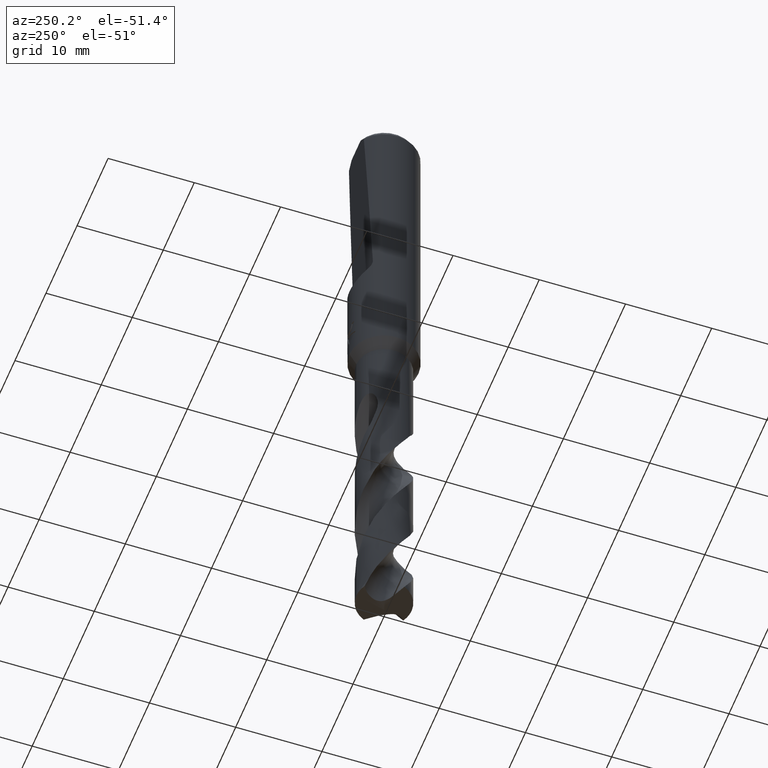
[diagram: clean part render]
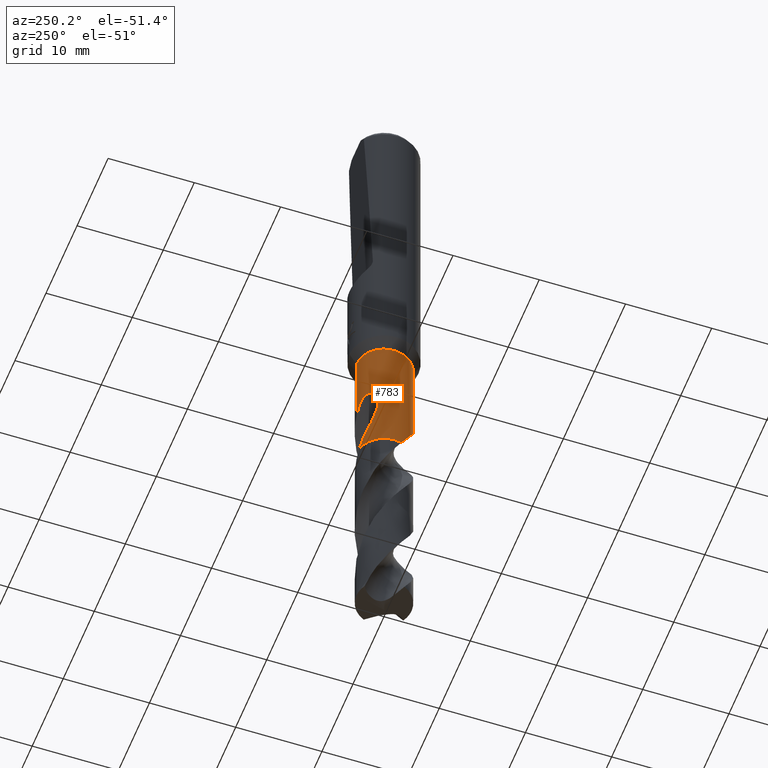
[diagram: same view with one face highlighted and labeled with its STEP entity id]
A machine part, auxiliary view. The second image highlights one B-rep face of the part: STEP entity #783.
In plain terms, the highlighted cylindrical surface (edge-blend (fillet) strip) has radius 3.2 mm, axis along (-0, -0, 1).
Its self-contained STEP definition (entity closure, byte-faithful):
#307=EDGE_CURVE('',#343,#479,#870,.T.);
#309=VERTEX_POINT('',#872);
#327=EDGE_CURVE('',#455,#517,#890,.T.);
#343=VERTEX_POINT('',#907);
#393=EDGE_CURVE('',#309,#455,#966,.T.);
#429=VERTEX_POINT('',#1004);
#439=VERTEX_POINT('',#1015);
#455=VERTEX_POINT('',#1033);
#479=VERTEX_POINT('',#1058);
#517=VERTEX_POINT('',#1099);
#549=EDGE_CURVE('',#439,#429,#1136,.T.);
#593=EDGE_CURVE('',#479,#309,#1183,.T.);
#595=EDGE_CURVE('',#793,#799,#1185,.T.);
#599=EDGE_CURVE('',#793,#343,#1189,.T.);
#645=EDGE_CURVE('',#517,#439,#1239,.T.);
#735=EDGE_CURVE('',#429,#799,#1337,.T.);
#783=ADVANCED_FACE('',(#1390),#1391,.T.);
#793=VERTEX_POINT('',#1402);
#799=VERTEX_POINT('',#1410);
#870=B_SPLINE_CURVE_WITH_KNOTS('',3,(#1477,#1478,#1479,#1480,#1481,#1482,#1483,#1484,#1485,#1486,#1487,#1488,#1489,#1490,#1491,#1492,#1493,#1494,#1495,#1496,#1497,#1498,#1499,#1500,#1501,#1502,#1503,#1504,#1505,#1506),.UNSPECIFIED.,.F.,.F.,(4,2,2,2,2,2,2,2,2,2,2,2,2,2,4),(0.0,1.56782231376001,2.4238893840547,3.1992708022558,4.10007757764716,5.18215244997313,6.12000526879655,6.54500791561114,6.85563302697629,7.14957522535255,7.52245842678827,8.06800167477267,8.84355554516768,9.35107348328173,9.88444037120564),.UNSPECIFIED.);
#872=CARTESIAN_POINT('',(3.91874033223161E-016,-3.2,-37.3856406460551));
#890=LINE('',#1595,#1596);
#907=CARTESIAN_POINT('',(-2.03908941204373,-2.46619430898929,-49.8434));
#966=CIRCLE('',#3240,3.2);
#1004=CARTESIAN_POINT('',(-2.2242474956683,2.30059189731975,-49.8434));
#1015=CARTESIAN_POINT('',(-2.60365492250826,1.86037121147864,-48.0911432665525));
#1033=CARTESIAN_POINT('',(0.0,3.2,-37.3856406460551));
#1058=CARTESIAN_POINT('',(9.49214578466195E-013,-3.2,-46.4418682923582));
#1099=CARTESIAN_POINT('',(-9.47882310836645E-013,3.2,-46.4418682923582));
#1136=B_SPLINE_CURVE_WITH_KNOTS('',3,(#4449,#4450,#4451,#4452),.UNSPECIFIED.,.F.,.F.,(4,4),(0.0,1.83910368550612),.UNSPECIFIED.);
#1183=LINE('',#4595,#4596);
#1185=CIRCLE('',#4599,3.2);
#1189=B_SPLINE_CURVE_WITH_KNOTS('',3,(#4605,#4606,#4607,#4608,#4609,#4610,#4611,#4612,#4613,#4614),.UNSPECIFIED.,.F.,.F.,(4,2,2,2,4),(0.0,1.85208206566709,2.44590199246698,2.92950370914155,3.35211332384867),.UNSPECIFIED.);
#1239=B_SPLINE_CURVE_WITH_KNOTS('',3,(#5109,#5110,#5111,#5112,#5113,#5114,#5115,#5116,#5117,#5118,#5119,#5120,#5121,#5122,#5123,#5124,#5125,#5126,#5127,#5128,#5129,#5130,#5131,#5132,#5133,#5134,#5135,#5136,#5137,#5138),.UNSPECIFIED.,.F.,.F.,(4,2,2,2,2,2,2,2,2,2,2,2,2,2,4),(0.0,1.56782231376,2.42388938405478,3.19927080225604,4.10007757764711,5.18215244997258,6.12000526879567,6.5450079156102,6.85563302697524,7.14957522535136,7.52245842678693,8.06800167476919,8.84355554515743,9.35107348326668,9.88444037118558),.UNSPECIFIED.);
#1337=B_SPLINE_CURVE_WITH_KNOTS('',3,(#5768,#5769,#5770,#5771,#5772,#5773,#5774,#5775),.UNSPECIFIED.,.F.,.F.,(4,2,2,4),(0.0,0.784464466969094,1.49816144601348,3.29542581541226),.UNSPECIFIED.);
#1390=FACE_OUTER_BOUND('',#6911,.T.);
#1391=CYLINDRICAL_SURFACE('',#6912,3.2);
#1402=CARTESIAN_POINT('',(-3.07150665534225,-0.897689738266087,-53.0));
#1410=CARTESIAN_POINT('',(-0.635884829735735,3.13618406400389,-53.0));
#1477=CARTESIAN_POINT('',(-2.03908941204373,-2.46619430898929,-49.8434));
#1478=CARTESIAN_POINT('',(-1.82800567805744,-2.64072176023561,-49.3983130869401));
#1479=CARTESIAN_POINT('',(-1.58530715369426,-2.79586454757279,-48.983348576287));
#1480=CARTESIAN_POINT('',(-1.16211325690765,-2.98602454372155,-48.2901219086283));
#1481=CARTESIAN_POINT('',(-1.00982828565803,-3.04072636046145,-48.0462215655825));
#1482=CARTESIAN_POINT('',(-0.715023821655965,-3.122480120881,-47.5740936955324));
#1483=CARTESIAN_POINT('',(-0.573820631320053,-3.1513635316966,-47.3480668416116));
#1484=CARTESIAN_POINT('',(-0.268175200748478,-3.19304942932217,-46.860918931824));
#1485=CARTESIAN_POINT('',(-0.101179909619363,-3.2028361312528,-46.5959847266246));
#1486=CARTESIAN_POINT('',(0.269673865903414,-3.1950353626123,-46.0292030328951));
#1487=CARTESIAN_POINT('',(0.489552675420427,-3.17090772647206,-45.7066980519819));
#1488=CARTESIAN_POINT('',(0.913560527382492,-3.07346880415289,-45.1749095931624));
#1489=CARTESIAN_POINT('',(1.1481471079517,-2.99923265302091,-44.9154176372088));
#1490=CARTESIAN_POINT('',(1.50319157987626,-2.82763812479162,-44.672429572298));
#1491=CARTESIAN_POINT('',(1.62071363798306,-2.76285725044016,-44.6123775031602));
#1492=CARTESIAN_POINT('',(1.82663930203468,-2.62947183507239,-44.5662467612278));
#1493=CARTESIAN_POINT('',(1.91110098015605,-2.56872711588605,-44.5653853979539));
#1494=CARTESIAN_POINT('',(2.06841541691173,-2.44360567542679,-44.6057594451824));
#1495=CARTESIAN_POINT('',(2.13721690172617,-2.38317451791265,-44.6436136909457));
#1496=CARTESIAN_POINT('',(2.2772271593514,-2.25074435739278,-44.7620552641219));
#1497=CARTESIAN_POINT('',(2.34200224069985,-2.18211572470509,-44.8495030551746));
#1498=CARTESIAN_POINT('',(2.47468255117535,-2.03226008390329,-45.0889622599878));
#1499=CARTESIAN_POINT('',(2.53810109542441,-1.95065296980348,-45.2665702252411));
#1500=CARTESIAN_POINT('',(2.65735732010013,-1.78678691936188,-45.7634975594319));
#1501=CARTESIAN_POINT('',(2.70047120201695,-1.71698786927451,-46.1174025482047));
#1502=CARTESIAN_POINT('',(2.72181085940624,-1.68285447465253,-46.7723943380162));
#1503=CARTESIAN_POINT('',(2.71679327525594,-1.69117410393097,-47.0332449366901));
#1504=CARTESIAN_POINT('',(2.68135347056868,-1.74685067707176,-47.5626413200452));
#1505=CARTESIAN_POINT('',(2.64970993141206,-1.79591560718919,-47.829194490778));
#1506=CARTESIAN_POINT('',(2.60365492250827,-1.86037121147863,-48.0911432665525));
#1595=CARTESIAN_POINT('',(-3.91874033223161E-016,3.2,-45.1928203230275));
#1596=VECTOR('',#7555,1.0);
#3240=AXIS2_PLACEMENT_3D('',#7676,#7677,#7678);
#4449=CARTESIAN_POINT('',(-2.60365492256088,1.860371211405,-48.0911432665814));
#4450=CARTESIAN_POINT('',(-2.50048955998773,2.0047547637061,-48.677932557379));
#4451=CARTESIAN_POINT('',(-2.3761477232539,2.15373242989646,-49.2682138070278));
#4452=CARTESIAN_POINT('',(-2.2242474956683,2.30059189731975,-49.8434));
#4595=CARTESIAN_POINT('',(3.91874033223161E-016,-3.2,-45.1928203230275));
#4596=VECTOR('',#7890,1.0);
#4599=AXIS2_PLACEMENT_3D('',#7891,#7892,#7893);
#4605=CARTESIAN_POINT('',(-3.07150665534225,-0.897689738266099,-53.0));
#4606=CARTESIAN_POINT('',(-2.98466682662223,-1.19481813407186,-52.4658579024943));
#4607=CARTESIAN_POINT('',(-2.85747755508035,-1.47208944702764,-51.961212762529));
#4608=CARTESIAN_POINT('',(-2.64094431427927,-1.80966676587329,-51.2451287135363));
#4609=CARTESIAN_POINT('',(-2.58557510735334,-1.88777208665138,-51.071123044987));
#4610=CARTESIAN_POINT('',(-2.48072087352703,-2.02284820015714,-50.7523845395494));
#4611=CARTESIAN_POINT('',(-2.42701189585663,-2.09025455124895,-50.5832193128625));
#4612=CARTESIAN_POINT('',(-2.2475227590779,-2.28113387154105,-50.1854979258011));
#4613=CARTESIAN_POINT('',(-2.15102117231717,-2.37364731607269,-50.0112286618536));
#4614=CARTESIAN_POINT('',(-2.03908941204373,-2.46619430898929,-49.8434));
#5109=CARTESIAN_POINT('',(2.03908941204373,2.46619430898929,-49.8434));
#5110=CARTESIAN_POINT('',(1.82800567805744,2.64072176023562,-49.3983130869401));
#5111=CARTESIAN_POINT('',(1.58530715369426,2.79586454757279,-48.983348576287));
#5112=CARTESIAN_POINT('',(1.16211325690762,2.98602454372156,-48.2901219086283));
#5113=CARTESIAN_POINT('',(1.00982828565799,3.04072636046146,-48.0462215655824));
#5114=CARTESIAN_POINT('',(0.715023821655987,3.122480120881,-47.5740936955324));
#5115=CARTESIAN_POINT('',(0.573820631320099,3.1513635316966,-47.3480668416116));
#5116=CARTESIAN_POINT('',(0.268175200748505,3.19304942932217,-46.8609189318241));
#5117=CARTESIAN_POINT('',(0.101179909619378,3.20283613125281,-46.5959847266246));
#5118=CARTESIAN_POINT('',(-0.269673865903409,3.1950353626123,-46.0292030328951));
#5119=CARTESIAN_POINT('',(-0.489552675420427,3.17090772647207,-45.7066980519819));
#5120=CARTESIAN_POINT('',(-0.913560527382516,3.07346880415289,-45.1749095931623));
#5121=CARTESIAN_POINT('',(-1.1481471079517,2.9992326530209,-44.9154176372088));
#5122=CARTESIAN_POINT('',(-1.50319157987628,2.82763812479161,-44.6724295722979));
#5123=CARTESIAN_POINT('',(-1.62071363798307,2.76285725044015,-44.6123775031602));
#5124=CARTESIAN_POINT('',(-1.82663930203465,2.62947183507241,-44.5662467612278));
#5125=CARTESIAN_POINT('',(-1.91110098015603,2.56872711588606,-44.5653853979539));
#5126=CARTESIAN_POINT('',(-2.06841541691173,2.44360567542679,-44.6057594451824));
#5127=CARTESIAN_POINT('',(-2.13721690172617,2.38317451791265,-44.6436136909456));
#5128=CARTESIAN_POINT('',(-2.27722715935141,2.25074435739277,-44.7620552641219));
#5129=CARTESIAN_POINT('',(-2.34200224069986,2.18211572470508,-44.8495030551746));
#5130=CARTESIAN_POINT('',(-2.47468255117505,2.03226008390363,-45.0889622599872));
#5131=CARTESIAN_POINT('',(-2.53810109542421,1.95065296980375,-45.2665702252403));
#5132=CARTESIAN_POINT('',(-2.65735732010007,1.78678691936196,-45.7634975594316));
#5133=CARTESIAN_POINT('',(-2.70047120201694,1.71698786927453,-46.1174025482044));
#5134=CARTESIAN_POINT('',(-2.72181085940623,1.68285447465253,-46.7723943380162));
#5135=CARTESIAN_POINT('',(-2.71679327525594,1.69117410393097,-47.0332449366901));
#5136=CARTESIAN_POINT('',(-2.68135347056868,1.74685067707177,-47.5626413200452));
#5137=CARTESIAN_POINT('',(-2.64970993141206,1.7959156071892,-47.829194490778));
#5138=CARTESIAN_POINT('',(-2.60365492250826,1.86037121147864,-48.0911432665525));
#5768=CARTESIAN_POINT('',(-2.2242474956683,2.30059189731975,-49.8434));
#5769=CARTESIAN_POINT('',(-2.13494642048429,2.38692954506594,-50.0735025512705));
#5770=CARTESIAN_POINT('',(-2.03789861191547,2.47107584600038,-50.304722016858));
#5771=CARTESIAN_POINT('',(-1.8263844795817,2.63063688784032,-50.756536103771));
#5772=CARTESIAN_POINT('',(-1.71899747496822,2.70256703984432,-50.9724619803796));
#5773=CARTESIAN_POINT('',(-1.30101331278927,2.94392907637004,-51.8020229384715));
#5774=CARTESIAN_POINT('',(-0.975236455317313,3.06737797792933,-52.402063183202));
#5775=CARTESIAN_POINT('',(-0.635884829735715,3.13618406400388,-53.0));
#6911=EDGE_LOOP('',(#8069,#8070,#8071,#8072,#8073,#8074,#8075,#8076,#8077));
#6912=AXIS2_PLACEMENT_3D('',#8078,#8079,#8080);
#7555=DIRECTION('',(0.0,0.0,-1.0));
#7676=CARTESIAN_POINT('',(0.0,0.0,-37.3856406460551));
#7677=DIRECTION('',(0.0,0.0,-1.0));
#7678=DIRECTION('',(0.0,1.0,0.0));
#7890=DIRECTION('',(-0.0,-0.0,1.0));
#7891=CARTESIAN_POINT('',(0.0,0.0,-53.0));
#7892=DIRECTION('',(0.0,0.0,-1.0));
#7893=DIRECTION('',(0.0,1.0,0.0));
#8069=ORIENTED_EDGE('',*,*,#327,.T.);
#8070=ORIENTED_EDGE('',*,*,#645,.T.);
#8071=ORIENTED_EDGE('',*,*,#549,.T.);
#8072=ORIENTED_EDGE('',*,*,#735,.T.);
#8073=ORIENTED_EDGE('',*,*,#595,.F.);
#8074=ORIENTED_EDGE('',*,*,#599,.T.);
#8075=ORIENTED_EDGE('',*,*,#307,.T.);
#8076=ORIENTED_EDGE('',*,*,#593,.T.);
#8077=ORIENTED_EDGE('',*,*,#393,.T.);
#8078=CARTESIAN_POINT('',(0.0,0.0,-45.1928203230275));
#8079=DIRECTION('',(-0.0,-0.0,1.0));
#8080=DIRECTION('',(0.0,1.0,0.0));